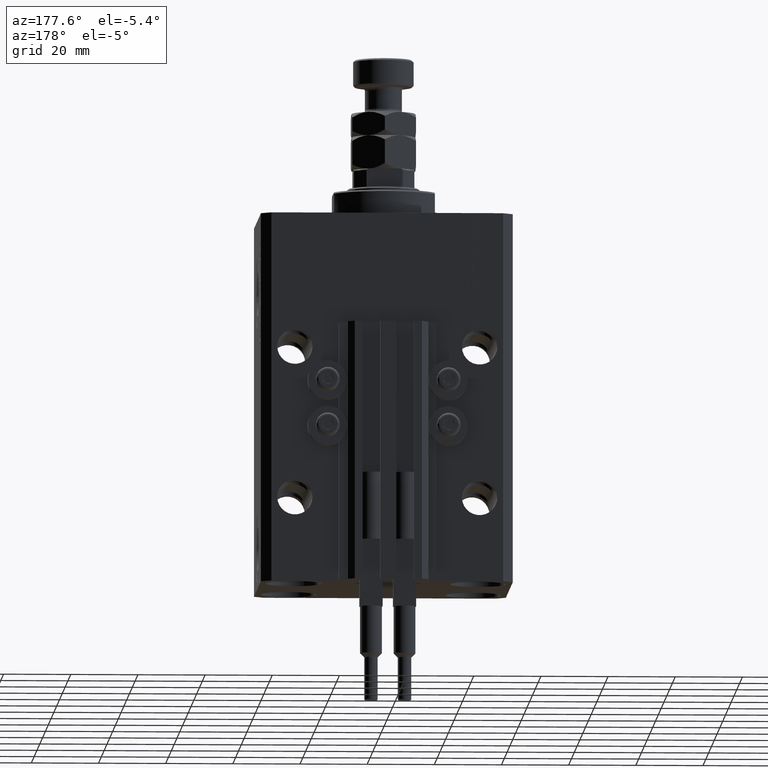
[diagram: clean part render]
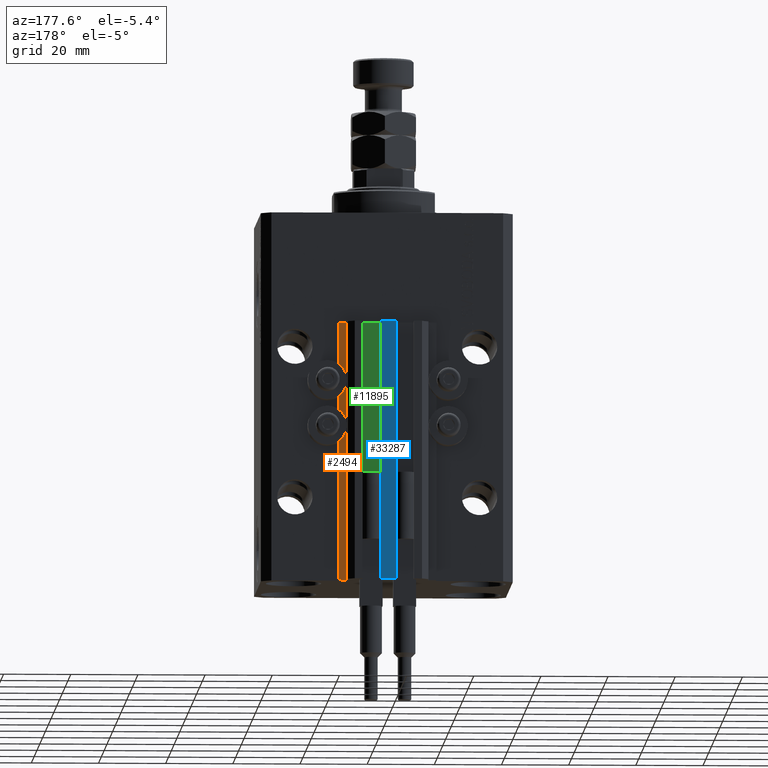
[diagram: same view with three faces highlighted in distinct colors, each labeled with its STEP entity id]
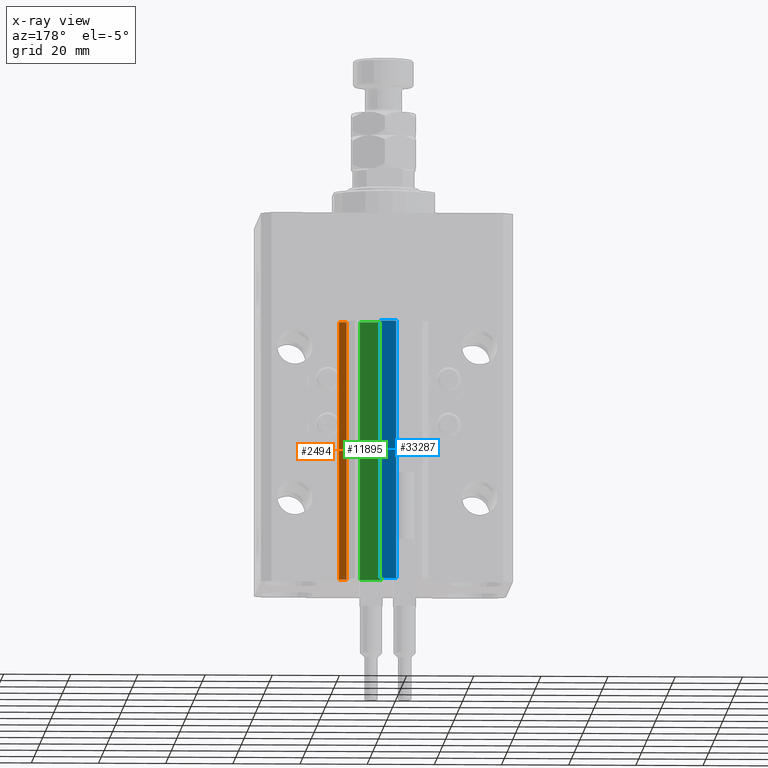
[diagram: x-ray of the same camera — body ghosted, the three highlighted faces saturated]
A machine part, auxiliary view with three faces highlighted in distinct colors.
The next image is the same camera in x-ray (body ghosted, the three faces saturated) — at least one of them is partly hidden behind the body in this view.
Their STEP definitions:

[orange] entity #2494 — the highlighted planar face has unit normal (0, 1, 0).
#2494 = ADVANCED_FACE ( 'NONE', ( #16539 ), #39452, .T. ) ;
#4017 = VECTOR ( 'NONE', #15260, 1000.000000000000000 ) ;
#5481 = VERTEX_POINT ( 'NONE', #29483 ) ;
#5879 = DIRECTION ( 'NONE',  ( -1.000000000000000000, 0.000000000000000000, 0.000000000000000000 ) ) ;
#11834 = CARTESIAN_POINT ( 'NONE',  ( 14.49999999999999645, 30.00000000000002487, -110.0000000000000000 ) ) ;
#14170 = VERTEX_POINT ( 'NONE', #32575 ) ;
#14258 = LINE ( 'NONE', #50154, #4017 ) ;
#14379 = CARTESIAN_POINT ( 'NONE',  ( 14.49999999999999645, 30.00000000000002487, -110.0000000000000000 ) ) ;
#15260 = DIRECTION ( 'NONE',  ( 0.000000000000000000, 0.000000000000000000, 1.000000000000000000 ) ) ;
#15280 = AXIS2_PLACEMENT_3D ( 'NONE', #16032, #35378, #24690 ) ;
#16032 = CARTESIAN_POINT ( 'NONE',  ( 14.49999999999999645, 30.00000000000002487, -110.0000000000000000 ) ) ;
#16539 = FACE_OUTER_BOUND ( 'NONE', #29024, .T. ) ;
#20576 = EDGE_CURVE ( 'NONE', #48754, #14170, #42208, .T. ) ;
#20808 = ORIENTED_EDGE ( 'NONE', *, *, #20576, .T. ) ;
#22159 = LINE ( 'NONE', #49145, #27626 ) ;
#24690 = DIRECTION ( 'NONE',  ( 0.000000000000000000, 0.000000000000000000, 1.000000000000000000 ) ) ;
#26678 = CARTESIAN_POINT ( 'NONE',  ( 14.49999999999999645, 30.00000000000002487, -110.0000000000000000 ) ) ;
#27626 = VECTOR ( 'NONE', #5879, 1000.000000000000000 ) ;
#29024 = EDGE_LOOP ( 'NONE', ( #45637, #37969, #20808, #49304 ) ) ;
#29483 = CARTESIAN_POINT ( 'NONE',  ( 14.49999999999999645, 30.00000000000002487, -33.00000000000000000 ) ) ;
#32575 = CARTESIAN_POINT ( 'NONE',  ( 12.20000000000000107, 30.00000000000002487, -110.0000000000000000 ) ) ;
#32972 = VECTOR ( 'NONE', #45956, 1000.000000000000000 ) ;
#32986 = EDGE_CURVE ( 'NONE', #48754, #5481, #42644, .T. ) ;
#33961 = CARTESIAN_POINT ( 'NONE',  ( 12.20000000000000107, 30.00000000000002487, -33.00000000000000000 ) ) ;
#35378 = DIRECTION ( 'NONE',  ( 0.000000000000000000, 1.000000000000000000, -0.000000000000000000 ) ) ;
#37969 = ORIENTED_EDGE ( 'NONE', *, *, #32986, .F. ) ;
#38250 = VECTOR ( 'NONE', #45522, 1000.000000000000000 ) ;
#39452 = PLANE ( 'NONE',  #15280 ) ;
#40601 = EDGE_CURVE ( 'NONE', #14170, #43229, #14258, .T. ) ;
#42208 = LINE ( 'NONE', #26678, #38250 ) ;
#42644 = LINE ( 'NONE', #11834, #32972 ) ;
#43229 = VERTEX_POINT ( 'NONE', #33961 ) ;
#45399 = EDGE_CURVE ( 'NONE', #5481, #43229, #22159, .T. ) ;
#45522 = DIRECTION ( 'NONE',  ( -1.000000000000000000, 0.000000000000000000, 0.000000000000000000 ) ) ;
#45637 = ORIENTED_EDGE ( 'NONE', *, *, #45399, .F. ) ;
#45956 = DIRECTION ( 'NONE',  ( 0.000000000000000000, 0.000000000000000000, 1.000000000000000000 ) ) ;
#48754 = VERTEX_POINT ( 'NONE', #14379 ) ;
#49145 = CARTESIAN_POINT ( 'NONE',  ( 14.49999999999999645, 30.00000000000002487, -33.00000000000000000 ) ) ;
#49304 = ORIENTED_EDGE ( 'NONE', *, *, #40601, .T. ) ;
#50154 = CARTESIAN_POINT ( 'NONE',  ( 12.20000000000000107, 30.00000000000002487, -110.0000000000000000 ) ) ;

[blue] entity #33287 — the highlighted planar face has unit normal (0, -1, 0).
#2627 = CARTESIAN_POINT ( 'NONE',  ( 2.349999999999999645, 35.50000000000001421, -110.0000000000000000 ) ) ;
#3637 = DIRECTION ( 'NONE',  ( 0.000000000000000000, -1.000000000000000000, 0.000000000000000000 ) ) ;
#4026 = CARTESIAN_POINT ( 'NONE',  ( 2.349999999999999645, 35.50000000000001421, -33.00000000000000000 ) ) ;
#5082 = LINE ( 'NONE', #39202, #9208 ) ;
#6094 = EDGE_CURVE ( 'NONE', #35039, #30899, #37501, .T. ) ;
#8154 = DIRECTION ( 'NONE',  ( 1.000000000000000000, 0.000000000000000000, 0.000000000000000000 ) ) ;
#9208 = VECTOR ( 'NONE', #8154, 1000.000000000000000 ) ;
#9537 = VECTOR ( 'NONE', #40938, 1000.000000000000000 ) ;
#13373 = VERTEX_POINT ( 'NONE', #46231 ) ;
#15333 = DIRECTION ( 'NONE',  ( 0.000000000000000000, -0.000000000000000000, -1.000000000000000000 ) ) ;
#20295 = CARTESIAN_POINT ( 'NONE',  ( 2.349999999999999645, 35.50000000000001421, -110.0000000000000000 ) ) ;
#21837 = LINE ( 'NONE', #37359, #9537 ) ;
#23700 = CARTESIAN_POINT ( 'NONE',  ( -2.350000000000003642, 35.50000000000001421, -110.0000000000000000 ) ) ;
#26442 = EDGE_CURVE ( 'NONE', #45118, #35039, #5082, .T. ) ;
#27057 = CARTESIAN_POINT ( 'NONE',  ( -2.350000000000003642, 35.50000000000001421, -110.0000000000000000 ) ) ;
#27485 = VECTOR ( 'NONE', #29630, 1000.000000000000000 ) ;
#29630 = DIRECTION ( 'NONE',  ( 0.000000000000000000, 0.000000000000000000, 1.000000000000000000 ) ) ;
#29877 = CARTESIAN_POINT ( 'NONE',  ( -2.350000000000003642, 35.50000000000001421, -110.0000000000000000 ) ) ;
#30899 = VERTEX_POINT ( 'NONE', #4026 ) ;
#33287 = ADVANCED_FACE ( 'NONE', ( #38505 ), #46652, .F. ) ;
#34887 = ORIENTED_EDGE ( 'NONE', *, *, #26442, .F. ) ;
#35039 = VERTEX_POINT ( 'NONE', #20295 ) ;
#37118 = EDGE_CURVE ( 'NONE', #13373, #30899, #21837, .T. ) ;
#37245 = DIRECTION ( 'NONE',  ( 0.000000000000000000, 0.000000000000000000, 1.000000000000000000 ) ) ;
#37359 = CARTESIAN_POINT ( 'NONE',  ( -2.350000000000003642, 35.50000000000001421, -33.00000000000000000 ) ) ;
#37501 = LINE ( 'NONE', #2627, #47694 ) ;
#38346 = EDGE_LOOP ( 'NONE', ( #44416, #39021, #34887, #44026 ) ) ;
#38505 = FACE_OUTER_BOUND ( 'NONE', #38346, .T. ) ;
#38866 = EDGE_CURVE ( 'NONE', #45118, #13373, #44917, .T. ) ;
#39021 = ORIENTED_EDGE ( 'NONE', *, *, #6094, .F. ) ;
#39202 = CARTESIAN_POINT ( 'NONE',  ( -2.350000000000003642, 35.50000000000001421, -110.0000000000000000 ) ) ;
#40938 = DIRECTION ( 'NONE',  ( 1.000000000000000000, 0.000000000000000000, 0.000000000000000000 ) ) ;
#44026 = ORIENTED_EDGE ( 'NONE', *, *, #38866, .T. ) ;
#44416 = ORIENTED_EDGE ( 'NONE', *, *, #37118, .T. ) ;
#44917 = LINE ( 'NONE', #29877, #27485 ) ;
#45118 = VERTEX_POINT ( 'NONE', #23700 ) ;
#46231 = CARTESIAN_POINT ( 'NONE',  ( -2.350000000000003642, 35.50000000000001421, -33.00000000000000000 ) ) ;
#46652 = PLANE ( 'NONE',  #48464 ) ;
#47694 = VECTOR ( 'NONE', #37245, 1000.000000000000000 ) ;
#48464 = AXIS2_PLACEMENT_3D ( 'NONE', #27057, #3637, #15333 ) ;

[green] entity #11895 — the highlighted planar face has unit normal (-0, 1, 0).
#240 = FACE_OUTER_BOUND ( 'NONE', #8839, .T. ) ;
#1966 = EDGE_CURVE ( 'NONE', #42012, #21179, #16916, .T. ) ;
#2918 = LINE ( 'NONE', #30658, #3932 ) ;
#3077 = AXIS2_PLACEMENT_3D ( 'NONE', #34879, #11713, #7649 ) ;
#3690 = EDGE_CURVE ( 'NONE', #45037, #50062, #2918, .T. ) ;
#3932 = VECTOR ( 'NONE', #22024, 1000.000000000000000 ) ;
#7649 = DIRECTION ( 'NONE',  ( -1.000000000000000000, -1.084202172485504828E-15, 0.000000000000000000 ) ) ;
#7930 = ORIENTED_EDGE ( 'NONE', *, *, #30715, .F. ) ;
#8731 = ORIENTED_EDGE ( 'NONE', *, *, #3690, .T. ) ;
#8839 = EDGE_LOOP ( 'NONE', ( #41472, #7930, #8731, #48433 ) ) ;
#11713 = DIRECTION ( 'NONE',  ( -1.084202172485504828E-15, 1.000000000000000000, 0.000000000000000000 ) ) ;
#11895 = ADVANCED_FACE ( 'NONE', ( #240 ), #18590, .T. ) ;
#13322 = CARTESIAN_POINT ( 'NONE',  ( 1.800000000000000933, 29.50000000000000000, -110.0000000000000000 ) ) ;
#15202 = DIRECTION ( 'NONE',  ( 0.000000000000000000, 0.000000000000000000, 1.000000000000000000 ) ) ;
#16916 = LINE ( 'NONE', #20482, #26672 ) ;
#17151 = CARTESIAN_POINT ( 'NONE',  ( 1.800000000000000933, 29.50000000000000000, -33.00000000000000000 ) ) ;
#18590 = PLANE ( 'NONE',  #3077 ) ;
#19046 = LINE ( 'NONE', #26691, #28993 ) ;
#20482 = CARTESIAN_POINT ( 'NONE',  ( 8.199999999999999289, 29.50000000000000711, -33.00000000000000000 ) ) ;
#21179 = VERTEX_POINT ( 'NONE', #17151 ) ;
#22024 = DIRECTION ( 'NONE',  ( -1.000000000000000000, -1.084202172485504828E-15, 0.000000000000000000 ) ) ;
#26672 = VECTOR ( 'NONE', #36011, 1000.000000000000000 ) ;
#26691 = CARTESIAN_POINT ( 'NONE',  ( 8.199999999999999289, 29.50000000000000711, -110.0000000000000000 ) ) ;
#28993 = VECTOR ( 'NONE', #49862, 1000.000000000000000 ) ;
#30658 = CARTESIAN_POINT ( 'NONE',  ( 8.199999999999999289, 29.50000000000000711, -110.0000000000000000 ) ) ;
#30715 = EDGE_CURVE ( 'NONE', #45037, #42012, #19046, .T. ) ;
#34101 = VECTOR ( 'NONE', #15202, 1000.000000000000000 ) ;
#34556 = LINE ( 'NONE', #50099, #34101 ) ;
#34879 = CARTESIAN_POINT ( 'NONE',  ( 8.199999999999999289, 29.50000000000000711, -110.0000000000000000 ) ) ;
#36011 = DIRECTION ( 'NONE',  ( -1.000000000000000000, -1.084202172485504828E-15, 0.000000000000000000 ) ) ;
#41472 = ORIENTED_EDGE ( 'NONE', *, *, #1966, .F. ) ;
#41904 = EDGE_CURVE ( 'NONE', #50062, #21179, #34556, .T. ) ;
#42012 = VERTEX_POINT ( 'NONE', #47776 ) ;
#42059 = CARTESIAN_POINT ( 'NONE',  ( 8.199999999999999289, 29.50000000000000711, -110.0000000000000000 ) ) ;
#45037 = VERTEX_POINT ( 'NONE', #42059 ) ;
#47776 = CARTESIAN_POINT ( 'NONE',  ( 8.199999999999999289, 29.50000000000000711, -33.00000000000000000 ) ) ;
#48433 = ORIENTED_EDGE ( 'NONE', *, *, #41904, .T. ) ;
#49862 = DIRECTION ( 'NONE',  ( 0.000000000000000000, 0.000000000000000000, 1.000000000000000000 ) ) ;
#50062 = VERTEX_POINT ( 'NONE', #13322 ) ;
#50099 = CARTESIAN_POINT ( 'NONE',  ( 1.800000000000000933, 29.50000000000000000, -110.0000000000000000 ) ) ;